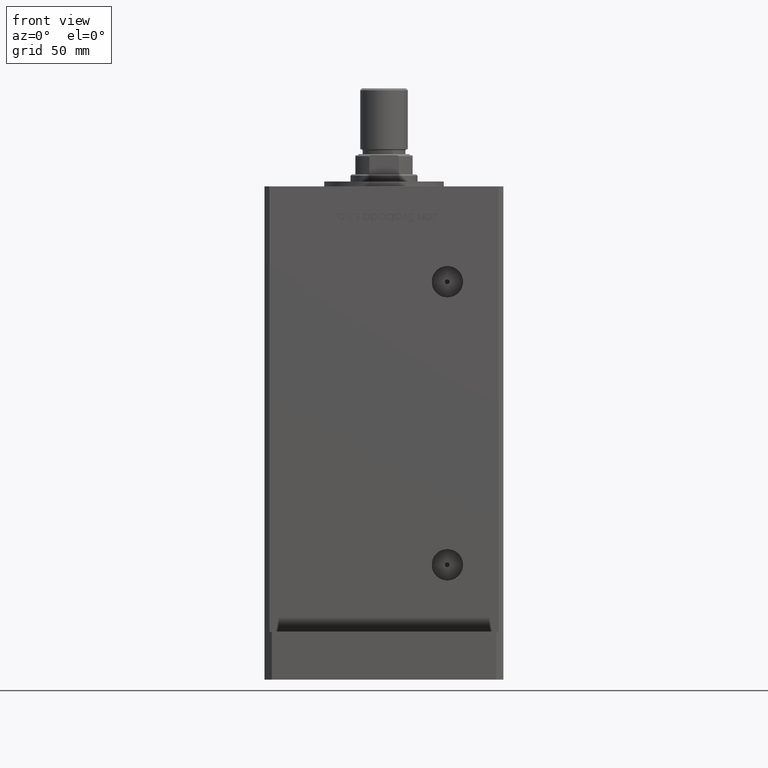
[diagram: clean part render]
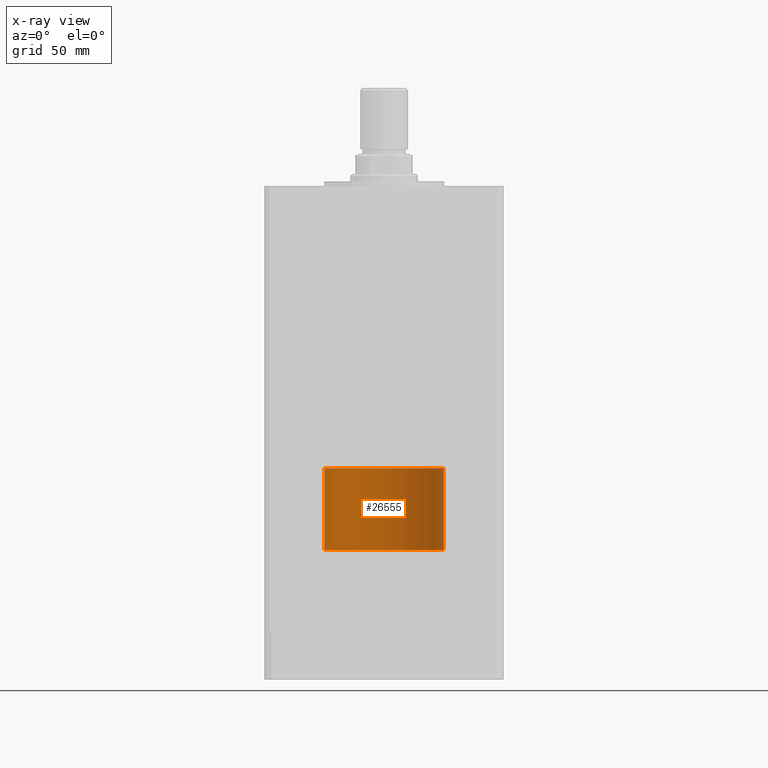
[diagram: x-ray — body ghosted, one internal face saturated and labeled with its STEP entity id]
A machine part, front view, then the same camera in x-ray: the body is ghosted and one INTERNAL B-rep face — a face not visible from any outside direction — is saturated and labeled: STEP entity #26555.
In plain terms, the highlighted cylindrical surface (partial cylindrical patch) has radius 25 mm, axis along (-0, -0, -1).
Its self-contained STEP definition (entity closure, byte-faithful):
#248 = FACE_OUTER_BOUND ( 'NONE', #5187, .T. ) ;
#2623 = DIRECTION ( 'NONE',  ( 0.000000000000000000, 0.000000000000000000, 1.000000000000000000 ) ) ;
#3572 = CARTESIAN_POINT ( 'NONE',  ( 25.00000000000000000, 3.061616997868383043E-15, 34.25000000000000000 ) ) ;
#3859 = DIRECTION ( 'NONE',  ( -0.000000000000000000, -0.000000000000000000, -1.000000000000000000 ) ) ;
#4139 = LINE ( 'NONE', #24676, #35596 ) ;
#5187 = EDGE_LOOP ( 'NONE', ( #46780, #10790, #23710, #30039 ) ) ;
#6022 = VECTOR ( 'NONE', #11171, 1000.000000000000000 ) ;
#7795 = VERTEX_POINT ( 'NONE', #34609 ) ;
#10790 = ORIENTED_EDGE ( 'NONE', *, *, #39138, .T. ) ;
#10908 = EDGE_CURVE ( 'NONE', #36465, #7795, #19074, .T. ) ;
#11123 = DIRECTION ( 'NONE',  ( 1.000000000000000000, 0.000000000000000000, 0.000000000000000000 ) ) ;
#11171 = DIRECTION ( 'NONE',  ( -0.000000000000000000, -0.000000000000000000, -1.000000000000000000 ) ) ;
#11643 = EDGE_CURVE ( 'NONE', #7795, #33893, #4139, .T. ) ;
#12882 = DIRECTION ( 'NONE',  ( -1.000000000000000000, 0.000000000000000000, 0.000000000000000000 ) ) ;
#14364 = EDGE_CURVE ( 'NONE', #17918, #33893, #19067, .T. ) ;
#16857 = DIRECTION ( 'NONE',  ( 0.000000000000000000, 0.000000000000000000, 1.000000000000000000 ) ) ;
#16989 = CYLINDRICAL_SURFACE ( 'NONE', #17120, 25.00000000000000000 ) ;
#17120 = AXIS2_PLACEMENT_3D ( 'NONE', #38060, #33674, #12882 ) ;
#17128 = DIRECTION ( 'NONE',  ( 1.000000000000000000, 0.000000000000000000, 0.000000000000000000 ) ) ;
#17918 = VERTEX_POINT ( 'NONE', #20932 ) ;
#19067 = CIRCLE ( 'NONE', #19913, 25.00000000000000000 ) ;
#19074 = CIRCLE ( 'NONE', #44415, 25.00000000000000000 ) ;
#19913 = AXIS2_PLACEMENT_3D ( 'NONE', #46671, #16857, #17128 ) ;
#20932 = CARTESIAN_POINT ( 'NONE',  ( 25.00000000000000000, 3.061616997868383043E-15, 0.000000000000000000 ) ) ;
#23710 = ORIENTED_EDGE ( 'NONE', *, *, #14364, .T. ) ;
#24233 = CARTESIAN_POINT ( 'NONE',  ( 0.000000000000000000, 0.000000000000000000, 34.25000000000000000 ) ) ;
#24676 = CARTESIAN_POINT ( 'NONE',  ( -25.00000000000000000, 0.000000000000000000, 34.25000000000000000 ) ) ;
#26555 = ADVANCED_FACE ( 'NONE', ( #248 ), #16989, .T. ) ;
#30039 = ORIENTED_EDGE ( 'NONE', *, *, #11643, .F. ) ;
#32496 = CARTESIAN_POINT ( 'NONE',  ( 25.00000000000000000, 3.061616997868383043E-15, 34.25000000000000000 ) ) ;
#33674 = DIRECTION ( 'NONE',  ( -0.000000000000000000, -0.000000000000000000, -1.000000000000000000 ) ) ;
#33893 = VERTEX_POINT ( 'NONE', #35474 ) ;
#34609 = CARTESIAN_POINT ( 'NONE',  ( -25.00000000000000000, 0.000000000000000000, 34.25000000000000000 ) ) ;
#35474 = CARTESIAN_POINT ( 'NONE',  ( -25.00000000000000000, 0.000000000000000000, 0.000000000000000000 ) ) ;
#35596 = VECTOR ( 'NONE', #3859, 1000.000000000000000 ) ;
#36465 = VERTEX_POINT ( 'NONE', #3572 ) ;
#38060 = CARTESIAN_POINT ( 'NONE',  ( 0.000000000000000000, 0.000000000000000000, 34.25000000000000000 ) ) ;
#39138 = EDGE_CURVE ( 'NONE', #36465, #17918, #48652, .T. ) ;
#44415 = AXIS2_PLACEMENT_3D ( 'NONE', #24233, #2623, #11123 ) ;
#46671 = CARTESIAN_POINT ( 'NONE',  ( 0.000000000000000000, 0.000000000000000000, 0.000000000000000000 ) ) ;
#46780 = ORIENTED_EDGE ( 'NONE', *, *, #10908, .F. ) ;
#48652 = LINE ( 'NONE', #32496, #6022 ) ;